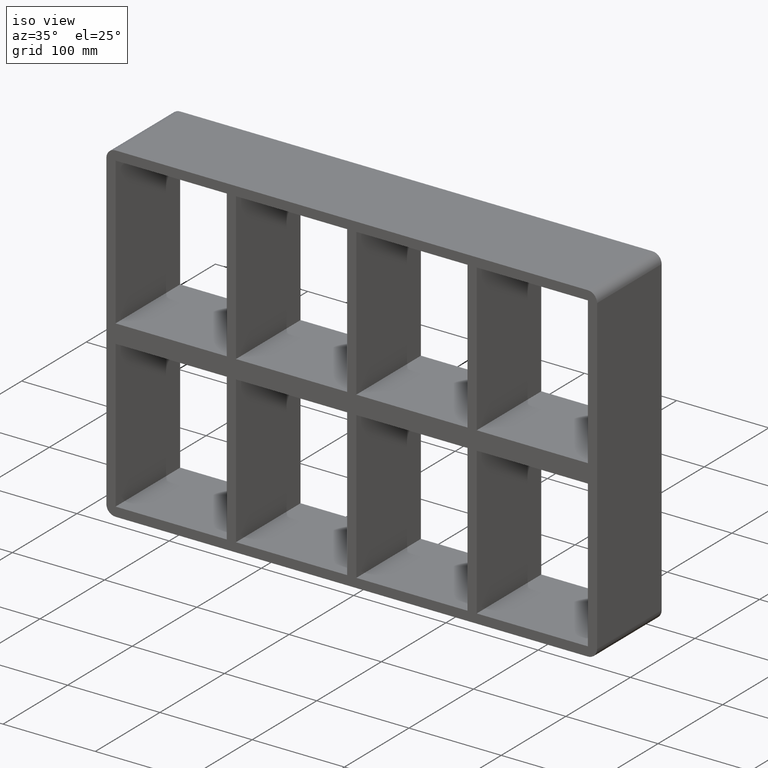
[diagram: clean part render]
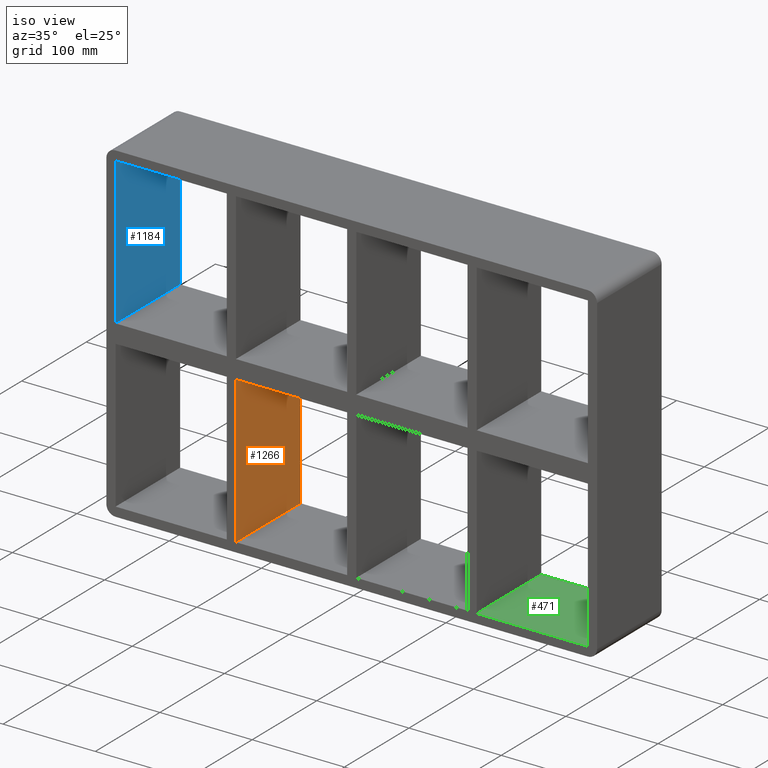
[diagram: same view with three faces highlighted in distinct colors, each labeled with its STEP entity id]
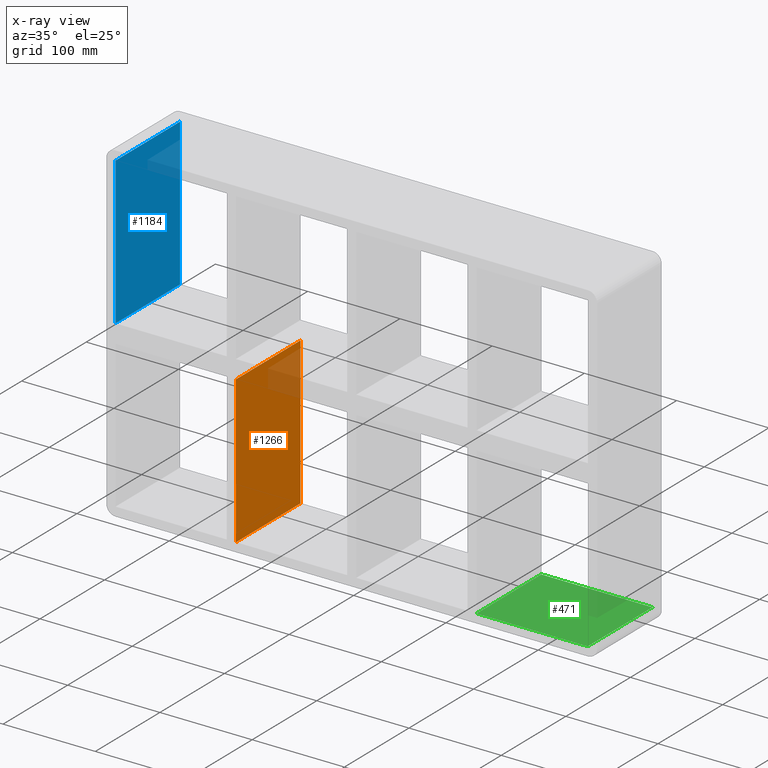
[diagram: x-ray of the same camera — body ghosted, the three highlighted faces saturated]
A machine part, iso view with three faces highlighted in distinct colors.
The next image is the same camera in x-ray (body ghosted, the three faces saturated) — at least one of them is partly hidden behind the body in this view.
Their STEP definitions:

[orange] entity #1266 — the highlighted planar face has unit normal (1, 0, 0).
#394=CARTESIAN_POINT('',(-125.49999999999272,97.0,-169.49999999997459));
#395=VERTEX_POINT('',#394);
#402=CARTESIAN_POINT('',(-125.49999999999272,-3.0,-169.49999999997459));
#403=VERTEX_POINT('',#402);
#404=CARTESIAN_POINT('',(-125.49999999999271,97.0,-169.50000000000003));
#405=DIRECTION('',(0.0,-1.0,0.0));
#406=VECTOR('',#405,100.0);
#407=LINE('',#404,#406);
#408=EDGE_CURVE('',#395,#403,#407,.T.);
#575=CARTESIAN_POINT('',(-125.49999999999272,-3.0,-10.000000000015598));
#576=VERTEX_POINT('',#575);
#577=CARTESIAN_POINT('',(-125.49999999999272,-3.0,-10.000000000015604));
#578=DIRECTION('',(0.0,0.0,-1.0));
#579=VECTOR('',#578,159.49999999995902);
#580=LINE('',#577,#579);
#581=EDGE_CURVE('',#576,#403,#580,.T.);
#760=CARTESIAN_POINT('',(-125.49999999999272,97.0,-10.000000000015598));
#761=VERTEX_POINT('',#760);
#762=CARTESIAN_POINT('',(-125.49999999999272,97.0,-10.000000000015593));
#763=DIRECTION('',(0.0,-1.0,0.0));
#764=VECTOR('',#763,100.0);
#765=LINE('',#762,#764);
#766=EDGE_CURVE('',#761,#576,#765,.T.);
#917=CARTESIAN_POINT('',(-125.49999999999272,97.0,-10.000000000015604));
#918=DIRECTION('',(0.0,0.0,-1.0));
#919=VECTOR('',#918,159.49999999995902);
#920=LINE('',#917,#919);
#921=EDGE_CURVE('',#761,#395,#920,.T.);
#1255=CARTESIAN_POINT('',(-125.49999999999272,-3.0,169.50000000000003));
#1256=DIRECTION('',(1.0,0.0,0.0));
#1257=DIRECTION('',(0.0,0.0,-1.0));
#1258=AXIS2_PLACEMENT_3D('',#1255,#1256,#1257);
#1259=PLANE('',#1258);
#1260=ORIENTED_EDGE('',*,*,#766,.T.);
#1261=ORIENTED_EDGE('',*,*,#581,.T.);
#1262=ORIENTED_EDGE('',*,*,#408,.F.);
#1263=ORIENTED_EDGE('',*,*,#921,.F.);
#1264=EDGE_LOOP('',(#1260,#1261,#1262,#1263));
#1265=FACE_OUTER_BOUND('',#1264,.T.);
#1266=ADVANCED_FACE('',(#1265),#1259,.T.);

[blue] entity #1184 — the highlighted planar face has unit normal (-1, 0, 0).
#660=CARTESIAN_POINT('',(-255.9999999999996,-3.0,10.0));
#661=VERTEX_POINT('',#660);
#662=CARTESIAN_POINT('',(-255.99999999999997,-3.0,169.50000000000003));
#663=VERTEX_POINT('',#662);
#664=CARTESIAN_POINT('',(-255.99999999999997,-3.0,10.0));
#665=DIRECTION('',(0.0,0.0,1.0));
#666=VECTOR('',#665,159.50000000000006);
#667=LINE('',#664,#666);
#668=EDGE_CURVE('',#661,#663,#667,.T.);
#926=CARTESIAN_POINT('',(-255.9999999999996,97.0,10.0));
#927=VERTEX_POINT('',#926);
#944=CARTESIAN_POINT('',(-255.99999999999997,97.0,169.50000000000003));
#945=VERTEX_POINT('',#944);
#952=CARTESIAN_POINT('',(-255.99999999999997,97.0,169.50000000000006));
#953=DIRECTION('',(0.0,0.0,-1.0));
#954=VECTOR('',#953,159.50000000000006);
#955=LINE('',#952,#954);
#956=EDGE_CURVE('',#945,#927,#955,.T.);
#1158=CARTESIAN_POINT('',(-255.99999999999997,-3.0,10.0));
#1159=DIRECTION('',(0.0,1.0,0.0));
#1160=VECTOR('',#1159,100.0);
#1161=LINE('',#1158,#1160);
#1162=EDGE_CURVE('',#661,#927,#1161,.T.);
#1168=CARTESIAN_POINT('',(-255.99999999999997,0.0,-169.50000000000003));
#1169=DIRECTION('',(-1.0,0.0,0.0));
#1170=DIRECTION('',(0.0,0.0,1.0));
#1171=AXIS2_PLACEMENT_3D('',#1168,#1169,#1170);
#1172=PLANE('',#1171);
#1173=ORIENTED_EDGE('',*,*,#1162,.T.);
#1174=ORIENTED_EDGE('',*,*,#956,.F.);
#1175=CARTESIAN_POINT('',(-255.99999999999997,-3.0,169.50000000000003));
#1176=DIRECTION('',(0.0,1.0,0.0));
#1177=VECTOR('',#1176,100.0);
#1178=LINE('',#1175,#1177);
#1179=EDGE_CURVE('',#663,#945,#1178,.T.);
#1180=ORIENTED_EDGE('',*,*,#1179,.F.);
#1181=ORIENTED_EDGE('',*,*,#668,.F.);
#1182=EDGE_LOOP('',(#1173,#1174,#1180,#1181));
#1183=FACE_OUTER_BOUND('',#1182,.T.);
#1184=ADVANCED_FACE('',(#1183),#1172,.F.);

[green] entity #471 — the highlighted planar face has unit normal (0, 0, -1).
#203=CARTESIAN_POINT('',(135.50000000000728,-3.0,-169.49999999997459));
#204=VERTEX_POINT('',#203);
#211=CARTESIAN_POINT('',(135.50000000000728,97.0,-169.49999999997459));
#212=VERTEX_POINT('',#211);
#213=CARTESIAN_POINT('',(135.5000000000073,97.0,-169.50000000000003));
#214=DIRECTION('',(0.0,-1.0,0.0));
#215=VECTOR('',#214,100.0);
#216=LINE('',#213,#215);
#217=EDGE_CURVE('',#212,#204,#216,.T.);
#441=CARTESIAN_POINT('',(255.99999999999997,0.0,-169.50000000000003));
#442=DIRECTION('',(0.0,0.0,-1.0));
#443=DIRECTION('',(-1.0,0.0,0.0));
#444=AXIS2_PLACEMENT_3D('',#441,#442,#443);
#445=PLANE('',#444);
#446=ORIENTED_EDGE('',*,*,#217,.T.);
#447=CARTESIAN_POINT('',(255.99999999999997,-3.0,-169.50000000000003));
#448=VERTEX_POINT('',#447);
#449=CARTESIAN_POINT('',(255.99999999999997,-3.0,-169.50000000000003));
#450=DIRECTION('',(-1.0,0.0,0.0));
#451=VECTOR('',#450,120.4999999999927);
#452=LINE('',#449,#451);
#453=EDGE_CURVE('',#448,#204,#452,.T.);
#454=ORIENTED_EDGE('',*,*,#453,.F.);
#455=CARTESIAN_POINT('',(255.99999999999997,97.0,-169.50000000000003));
#456=VERTEX_POINT('',#455);
#457=CARTESIAN_POINT('',(255.99999999999997,97.0,-169.50000000000003));
#458=DIRECTION('',(0.0,-1.0,0.0));
#459=VECTOR('',#458,100.0);
#460=LINE('',#457,#459);
#461=EDGE_CURVE('',#456,#448,#460,.T.);
#462=ORIENTED_EDGE('',*,*,#461,.F.);
#463=CARTESIAN_POINT('',(135.50000000000728,97.0,-169.50000000000003));
#464=DIRECTION('',(1.0,0.0,0.0));
#465=VECTOR('',#464,120.4999999999927);
#466=LINE('',#463,#465);
#467=EDGE_CURVE('',#212,#456,#466,.T.);
#468=ORIENTED_EDGE('',*,*,#467,.F.);
#469=EDGE_LOOP('',(#446,#454,#462,#468));
#470=FACE_OUTER_BOUND('',#469,.T.);
#471=ADVANCED_FACE('',(#470),#445,.F.);